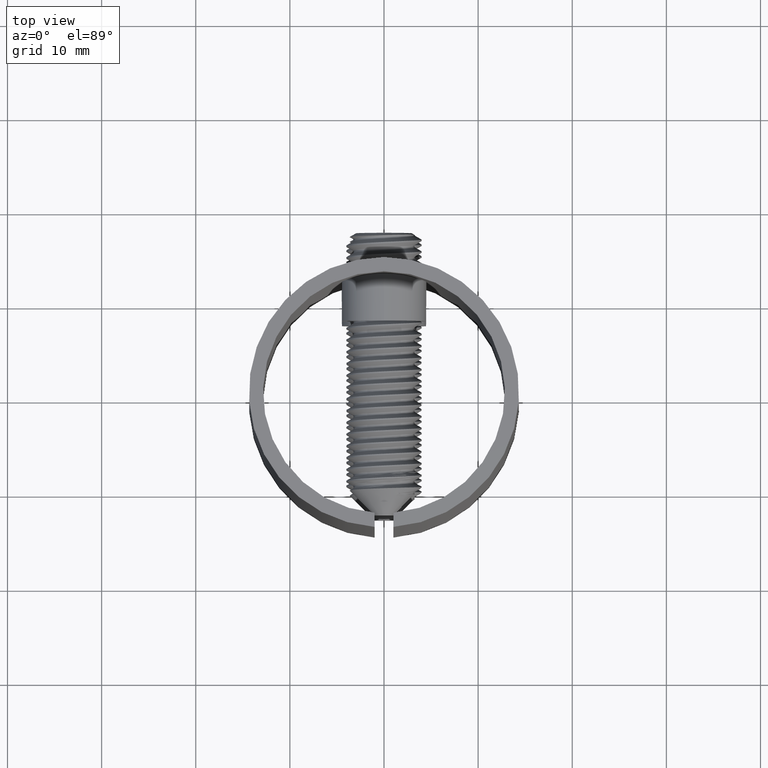
[diagram: clean part render]
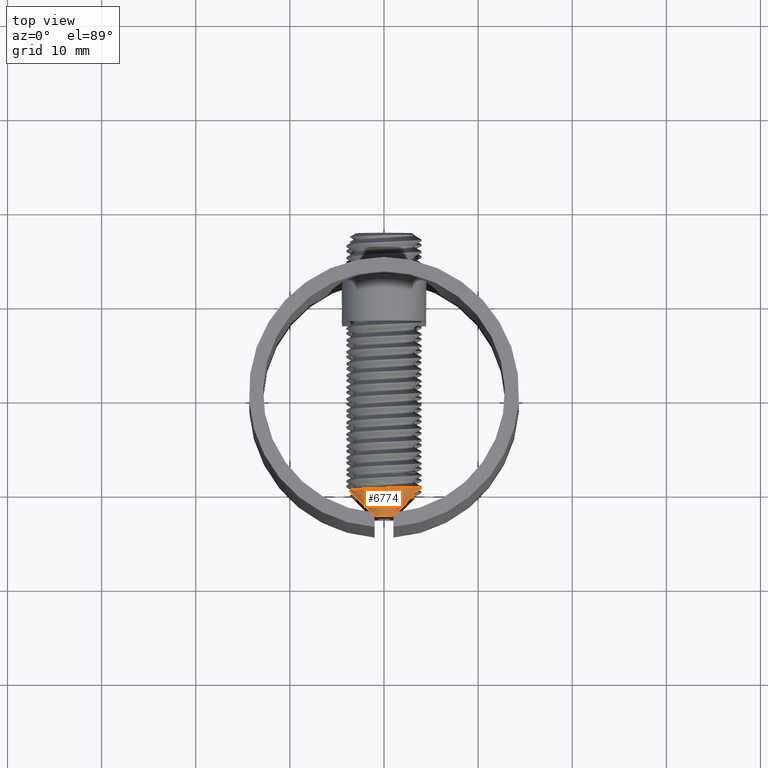
[diagram: same view with one face highlighted and labeled with its STEP entity id]
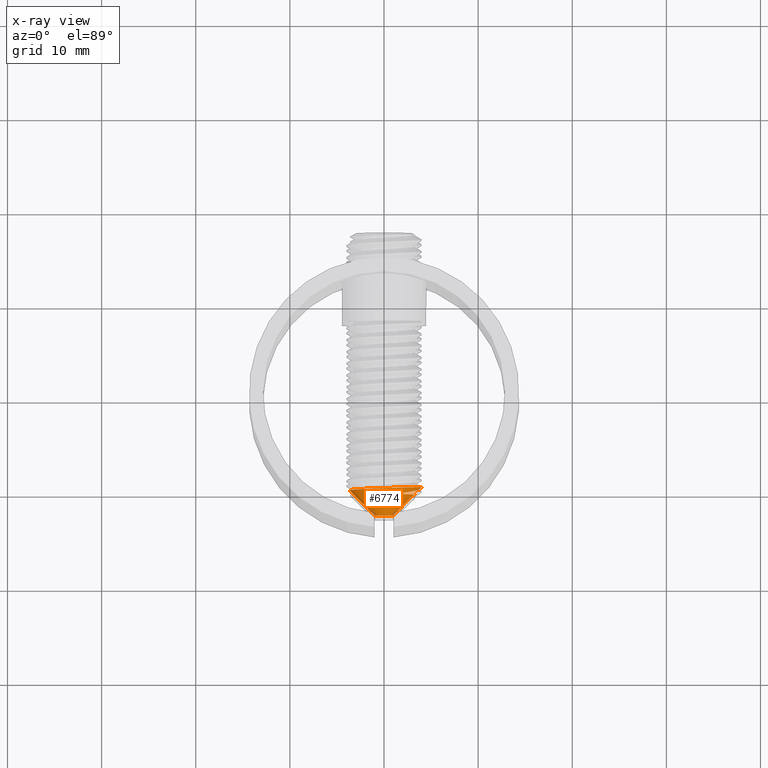
[diagram: x-ray of the same camera — body ghosted, the highlighted face saturated]
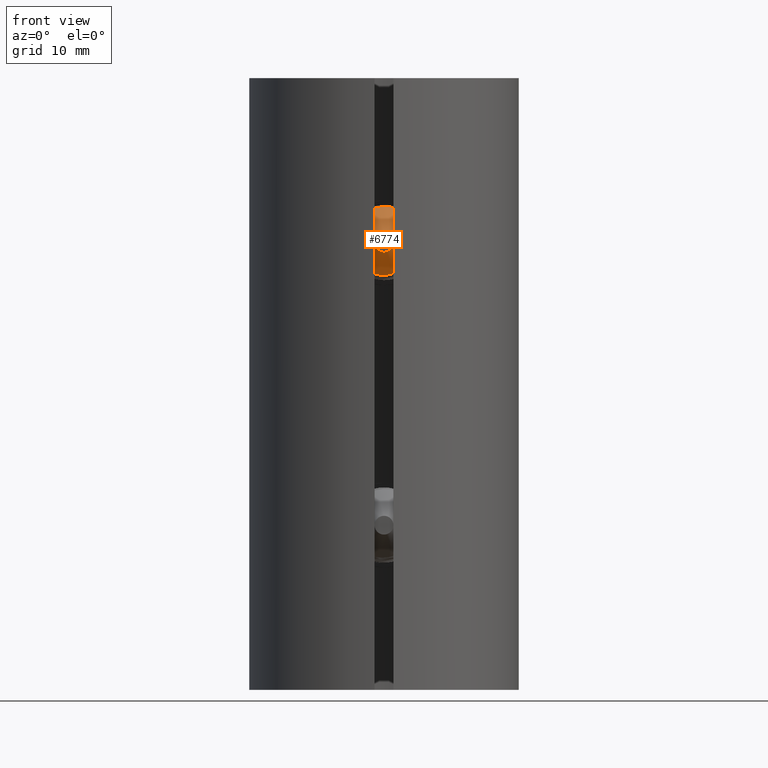
[diagram: same view with one face highlighted and labeled with its STEP entity id]
A machine part, top view. The second image highlights one B-rep face of the part: STEP entity #6774.
The next image is the same camera in x-ray: the body ghosted, the highlighted face saturated — about 1% of this face is hidden behind the body in this view.
A second angle (front view) of the same face is appended — the face is thin or edge-on in the first view.
In plain terms, the highlighted conical surface has half-angle 45 deg.
Its self-contained STEP definition (entity closure, byte-faithful):
#78 = ORIENTED_EDGE ( 'NONE', *, *, #5013, .F. ) ;
#232 = CARTESIAN_POINT ( 'NONE',  ( 2.732472793453551319, 0.7003675740083433743, 3.672872782290969251 ) ) ;
#280 = CARTESIAN_POINT ( 'NONE',  ( 2.441853871619225735, 2.481997571003145886, 2.394608430989022985 ) ) ;
#464 = EDGE_CURVE ( 'NONE', #10109, #2114, #3845, .T. ) ;
#494 = CARTESIAN_POINT ( 'NONE',  ( 2.252383893395727199, 0.5872434834773666568, 3.206907523659066062 ) ) ;
#580 = EDGE_LOOP ( 'NONE', ( #6157, #9927, #78, #1748 ) ) ;
#709 = CARTESIAN_POINT ( 'NONE',  ( 2.807608502105919612, 3.593890995401247235, -1.274268750687270080 ) ) ;
#726 = CARTESIAN_POINT ( 'NONE',  ( 2.300368667587964655, 2.934344625862938649, 1.510700411729752668 ) ) ;
#893 = CARTESIAN_POINT ( 'NONE',  ( 2.373518243573437214, -2.720691221118319181, 2.005157749666361955 ) ) ;
#988 = CARTESIAN_POINT ( 'NONE',  ( 2.351122578835256771, -2.292252405708974816, 2.453166170975595417 ) ) ;
#1217 = CARTESIAN_POINT ( 'NONE',  ( 2.352047583617038029, 2.820849184947258337, 1.824336761129479401 ) ) ;
#1267 = CARTESIAN_POINT ( 'NONE',  ( 2.813463944132663208, 0.04595530224938799979, 3.819540071872713494 ) ) ;
#1307 = CARTESIAN_POINT ( 'NONE',  ( 2.382742596907032162, 2.720806682233161133, 2.021945073807317250 ) ) ;
#1520 = DIRECTION ( 'NONE',  ( -1.000000000000000000, -0.000000000000000000, -0.000000000000000000 ) ) ;
#1587 = VERTEX_POINT ( 'NONE', #8519 ) ;
#1748 = ORIENTED_EDGE ( 'NONE', *, *, #13224, .T. ) ;
#1792 = CARTESIAN_POINT ( 'NONE',  ( 2.973412303395622569, 2.225243543097147114, 3.317669968308135431 ) ) ;
#1834 = CARTESIAN_POINT ( 'NONE',  ( 2.765821764564688312, 2.964155990785655614, -2.331761209459589423 ) ) ;
#1850 = CARTESIAN_POINT ( 'NONE',  ( 2.243313314210731768, 2.761494989473196604, 1.704673841591194172 ) ) ;
#1882 = CARTESIAN_POINT ( 'NONE',  ( 2.835150006989613836, 3.810624390151623686, -0.4790922828771628228 ) ) ;
#1901 = CARTESIAN_POINT ( 'NONE',  ( 2.278585627262468272, 2.929309596327290155, 1.472504726664996211 ) ) ;
#1930 = CARTESIAN_POINT ( 'NONE',  ( 2.494752859786858679, -3.319045695358009862, -1.113168939808582891 ) ) ;
#1978 = CARTESIAN_POINT ( 'NONE',  ( 2.604487327653862039, -1.344878589884743958, -3.369151908998183398 ) ) ;
#2029 = CARTESIAN_POINT ( 'NONE',  ( 2.328047825918495128, -1.790295253892882021, 2.813165329787050695 ) ) ;
#2114 = VERTEX_POINT ( 'NONE', #12429 ) ;
#2309 = CARTESIAN_POINT ( 'NONE',  ( 2.787469492378666036, 0.2677139947784154539, 3.784496060566593822 ) ) ;
#2637 = CARTESIAN_POINT ( 'NONE',  ( 0.000000000000000000, 0.000000000000000000, -0.9999999999999892308 ) ) ;
#2877 = CARTESIAN_POINT ( 'NONE',  ( 2.732254166239438842, 2.201352441039378327, -3.021010365672334608 ) ) ;
#2893 = CARTESIAN_POINT ( 'NONE',  ( 2.283350686042516564, 2.934536996157730560, 1.472713655674893429 ) ) ;
#2919 = CARTESIAN_POINT ( 'NONE',  ( 2.471987009344659647, -3.441354372843653309, -0.5044983585087310374 ) ) ;
#2937 = CARTESIAN_POINT ( 'NONE',  ( 2.316050314459821902, 2.910560383330252243, 1.589205720366669849 ) ) ;
#2982 = CARTESIAN_POINT ( 'NONE',  ( 2.293936565943644812, 2.937255511874842462, 1.490834783688373966 ) ) ;
#2991 = DIRECTION ( 'NONE',  ( 0.000000000000000000, 0.000000000000000000, -1.000000000000000000 ) ) ;
#3009 = CARTESIAN_POINT ( 'NONE',  ( 2.450299880586601642, -3.454627087781998451, 0.1099855849211205522 ) ) ;
#3038 = CARTESIAN_POINT ( 'NONE',  ( 3.000000000000000000, 1.501582772367773488, 3.707458587459651067 ) ) ;
#3059 = CARTESIAN_POINT ( 'NONE',  ( 2.894786138555321298, 3.659735781456697534, 1.348233182847106360 ) ) ;
#3088 = EDGE_CURVE ( 'NONE', #5794, #5794, #5980, .T. ) ;
#3500 = CARTESIAN_POINT ( 'NONE',  ( 2.470238826242047381, 2.341192487048850523, 2.570997627905420302 ) ) ;
#3588 = DIRECTION ( 'NONE',  ( 0.000000000000000000, 0.000000000000000000, -1.000000000000000000 ) ) ;
#3662 = DIRECTION ( 'NONE',  ( 0.000000000000000000, 0.000000000000000000, -1.000000000000000000 ) ) ;
#3713 = CARTESIAN_POINT ( 'NONE',  ( 2.286948239912512726, -0.7532741150883174308, 3.230503852956658317 ) ) ;
#3845 = B_SPLINE_CURVE_WITH_KNOTS ( 'NONE', 3,
 ( #11013, #1217, #1307, #280, #3500, #4448, #8961, #5544, #5587, #4537, #232, #2309, #1267, #8779, #7772, #11146 ),
 .UNSPECIFIED., .F., .F.,
 ( 4, 2, 2, 2, 2, 2, 2, 4 ),
 ( 2.984616190794139929E-16, 0.0006693980249465494685, 0.001338796049892800348, 0.002008194074839051227, 0.002677592099785302323, 0.003346990124731553419, 0.004016388149677804081, 0.005355184199570306273 ),
 .UNSPECIFIED. ) ;
#3889 = CARTESIAN_POINT ( 'NONE',  ( 2.291615754069609157, 2.938088756696093817, 1.484045186608175193 ) ) ;
#3962 = CARTESIAN_POINT ( 'NONE',  ( 2.954078118527459385, 2.689015394139418813, 2.906301662849583245 ) ) ;
#4009 = CARTESIAN_POINT ( 'NONE',  ( 2.427927060687872896, -3.357127633566891145, 0.7231563494454724683 ) ) ;
#4026 = CARTESIAN_POINT ( 'NONE',  ( 2.229843917470292869, 2.006113318721689964, 2.541342605364815821 ) ) ;
#4057 = CARTESIAN_POINT ( 'NONE',  ( 2.848255154616866403, 3.853053076907344998, -0.07114635471035973824 ) ) ;
#4083 = CARTESIAN_POINT ( 'NONE',  ( 2.999999999999999112, 0.000000000000000000, 0.000000000000000000 ) ) ;
#4448 = CARTESIAN_POINT ( 'NONE',  ( 2.528716738964686073, 2.033381102448772015, 2.892379067308653795 ) ) ;
#4537 = CARTESIAN_POINT ( 'NONE',  ( 2.704397777732019836, 0.9087128733884110021, 3.597911262749567296 ) ) ;
#4605 = B_SPLINE_CURVE_WITH_KNOTS ( 'NONE', 3,
 ( #8499, #6187, #1792, #3962, #6101, #10580, #8397, #10481, #8444, #3059, #7207, #13823, #12812, #9583, #4057, #1882, #13729, #13874, #709, #8302, #9484, #12761, #1834, #9391, #5155, #2877, #11569, #5109, #7299, #6281, #11665, #5063, #12668, #6141, #1978, #6229, #13775, #11715, #7249, #8343, #13920, #1930, #9535, #2919, #10532, #3009, #7396, #4009, #10626, #5201, #11617, #12710, #893, #5399, #988, #5308, #2029, #14024 ),
 .UNSPECIFIED., .F., .F.,
 ( 4, 2, 2, 2, 2, 2, 2, 2, 2, 2, 2, 2, 2, 2, 2, 2, 2, 2, 2, 2, 2, 2, 2, 2, 2, 2, 2, 2, 4 ),
 ( 3.909146525865938545E-18, 0.001228390359073292361, 0.001842585538609936699, 0.002456780718146580819, 0.003070975897683226024, 0.003685171077219871229, 0.004299366256756517735, 0.004913561436293162506, 0.005527756615829808144, 0.006141951795366452915, 0.006756146974903098554, 0.007370342154439743325, 0.007984537333976388096, 0.008598732513513033734, 0.009212927693049677638, 0.009827122872586321542, 0.01105551323165961108, 0.01228390359073290063, 0.01351229394980618843, 0.01412648912934283407, 0.01474068430887947798, 0.01535487948841612535, 0.01596907466795277272, 0.01658326984748941663, 0.01719746502702606400, 0.01781166020656271137, 0.01842585538609935875, 0.01904005056563600265, 0.01965424574517265002 ),
 .UNSPECIFIED. ) ;
#4983 = VERTEX_POINT ( 'NONE', #3038 ) ;
#4996 = CARTESIAN_POINT ( 'NONE',  ( 2.262586745972936075, 2.888033668966297984, 1.517867888519707886 ) ) ;
#5013 = EDGE_CURVE ( 'NONE', #4983, #2114, #8360, .T. ) ;
#5037 = CARTESIAN_POINT ( 'NONE',  ( 2.285977635978072353, 2.936171371603525149, 1.475314219800798243 ) ) ;
#5063 = CARTESIAN_POINT ( 'NONE',  ( 2.661163790361418258, 0.2756415563376637401, -3.673652769440772126 ) ) ;
#5080 = CARTESIAN_POINT ( 'NONE',  ( 2.239852663903267427, 2.697516295124677832, 1.798015859755359047 ) ) ;
#5109 = CARTESIAN_POINT ( 'NONE',  ( 2.711170062180985774, 1.666386630145762382, -3.322317244521830748 ) ) ;
#5155 = CARTESIAN_POINT ( 'NONE',  ( 2.745958145684994633, 2.530193186409799733, -2.770028863825657606 ) ) ;
#5173 = CARTESIAN_POINT ( 'NONE',  ( 2.276812761440035526, 2.926444433889895613, 1.474256890000764875 ) ) ;
#5201 = CARTESIAN_POINT ( 'NONE',  ( 2.404754870241925246, -3.152361048939851695, 1.302685587322410576 ) ) ;
#5308 = CARTESIAN_POINT ( 'NONE',  ( 2.335876702580696129, -1.964873074572548006, 2.703658630663026141 ) ) ;
#5399 = CARTESIAN_POINT ( 'NONE',  ( 2.358442505545565115, -2.445741148025901257, 2.310774606469154779 ) ) ;
#5544 = CARTESIAN_POINT ( 'NONE',  ( 2.617241493106041705, 1.504358124780492911, 3.296966714367457030 ) ) ;
#5587 = CARTESIAN_POINT ( 'NONE',  ( 2.646933033974607774, 1.309821772950754859, 3.410666961550988585 ) ) ;
#5794 = VERTEX_POINT ( 'NONE', #2637 ) ;
#5889 = CARTESIAN_POINT ( 'NONE',  ( 2.268317814047227543, -0.08442140994709466939, 3.274852887581459093 ) ) ;
#5980 = CIRCLE ( 'NONE', #10113, 0.9999999999999892308 ) ;
#6101 = CARTESIAN_POINT ( 'NONE',  ( 2.947891088157791994, 2.833180734127882960, 2.756955788102319449 ) ) ;
#6141 = CARTESIAN_POINT ( 'NONE',  ( 2.619534340839618114, -0.9500837888476492132, -3.516490073330340582 ) ) ;
#6157 = ORIENTED_EDGE ( 'NONE', *, *, #10658, .T. ) ;
#6187 = CARTESIAN_POINT ( 'NONE',  ( 2.986574883388736890, 1.881122087541610588, 3.539254371866875193 ) ) ;
#6229 = CARTESIAN_POINT ( 'NONE',  ( 2.575119185646212561, -2.052210469748972255, -2.955920075314544260 ) ) ;
#6281 = CARTESIAN_POINT ( 'NONE',  ( 2.689477561532330530, 1.082660555015318771, -3.533124654276723842 ) ) ;
#6774 = ADVANCED_FACE ( 'NONE', ( #14008, #6824 ), #13653, .T. ) ;
#6824 = FACE_OUTER_BOUND ( 'NONE', #580, .T. ) ;
#7207 = CARTESIAN_POINT ( 'NONE',  ( 2.887998161509027994, 3.718973605081613343, 1.152351414925383732 ) ) ;
#7249 = CARTESIAN_POINT ( 'NONE',  ( 2.532416643362710218, -2.888062166651379048, -2.044492664186564390 ) ) ;
#7274 = DIRECTION ( 'NONE',  ( 1.000000000000000000, -0.000000000000000000, -0.000000000000000000 ) ) ;
#7295 = AXIS2_PLACEMENT_3D ( 'NONE', #11277, #12378, #3588 ) ;
#7299 = CARTESIAN_POINT ( 'NONE',  ( 2.703966036138916174, 1.476224617032029007, -3.403381303928906920 ) ) ;
#7317 = CARTESIAN_POINT ( 'NONE',  ( 2.239306035328340716, 1.234346522707120641, 3.003411131912077092 ) ) ;
#7396 = CARTESIAN_POINT ( 'NONE',  ( 2.443026268253588373, -3.434557931655008112, 0.3175197921318405059 ) ) ;
#7659 = AXIS2_PLACEMENT_3D ( 'NONE', #4083, #7274, #2991 ) ;
#7772 = CARTESIAN_POINT ( 'NONE',  ( 2.946213245500140854, -1.068538552748550918, 3.824817881323633983 ) ) ;
#8302 = CARTESIAN_POINT ( 'NONE',  ( 2.793662103321998824, 3.423623976666126723, -1.646997829711164485 ) ) ;
#8343 = CARTESIAN_POINT ( 'NONE',  ( 2.517414967297487483, -3.094444836248990249, -1.685083142646143006 ) ) ;
#8360 = CIRCLE ( 'NONE', #7659, 4.000000000000000000 ) ;
#8361 = CARTESIAN_POINT ( 'NONE',  ( 2.260751370765563983, 2.879901305709872350, 1.529334191123445263 ) ) ;
#8397 = CARTESIAN_POINT ( 'NONE',  ( 2.928642754835230289, 3.210783349259253239, 2.273197378472027186 ) ) ;
#8444 = CARTESIAN_POINT ( 'NONE',  ( 2.908388191615620677, 3.510446180141300054, 1.730406169953634610 ) ) ;
#8499 = CARTESIAN_POINT ( 'NONE',  ( 3.000000000000000000, 1.501582772367773488, 3.707458587459651067 ) ) ;
#8519 = CARTESIAN_POINT ( 'NONE',  ( 2.320000000000010498, -1.604542476555381958, 2.906517407642621897 ) ) ;
#8779 = CARTESIAN_POINT ( 'NONE',  ( 2.891617496181264180, -0.6175430645668956720, 3.867465745029302404 ) ) ;
#8961 = CARTESIAN_POINT ( 'NONE',  ( 2.558126528311468917, 1.866020250043032513, 3.037577930143546379 ) ) ;
#8992 = CARTESIAN_POINT ( 'NONE',  ( 0.000000000000000000, 0.000000000000000000, 0.000000000000000000 ) ) ;
#9364 = CARTESIAN_POINT ( 'NONE',  ( 2.319999999999996287, 2.900717108233616504, 1.615004723832368816 ) ) ;
#9391 = CARTESIAN_POINT ( 'NONE',  ( 2.752476003891789258, 2.683862829555450524, -2.630565335644818870 ) ) ;
#9411 = CARTESIAN_POINT ( 'NONE',  ( 2.255885704810409731, 2.855802527923969159, 1.563957810034635187 ) ) ;
#9456 = CARTESIAN_POINT ( 'NONE',  ( 2.267338825127187540, 2.904942655846128208, 1.495660486043910442 ) ) ;
#9484 = CARTESIAN_POINT ( 'NONE',  ( 2.786583463145846817, 3.322146032248491032, -1.828698461544557174 ) ) ;
#9535 = CARTESIAN_POINT ( 'NONE',  ( 2.487097512379117248, -3.371958320716871516, -0.9124093732305388338 ) ) ;
#9583 = CARTESIAN_POINT ( 'NONE',  ( 2.854503841933479613, 3.857665994280268684, 0.1334652886670943117 ) ) ;
#9596 = ORIENTED_EDGE ( 'NONE', *, *, #3088, .F. ) ;
#9927 = ORIENTED_EDGE ( 'NONE', *, *, #464, .T. ) ;
#10109 = VERTEX_POINT ( 'NONE', #12863 ) ;
#10113 = AXIS2_PLACEMENT_3D ( 'NONE', #8992, #1520, #3662 ) ;
#10481 = CARTESIAN_POINT ( 'NONE',  ( 2.915262972000284503, 3.419334620878498043, 1.918269280531651022 ) ) ;
#10498 = CARTESIAN_POINT ( 'NONE',  ( 2.303382099482735423, 2.930932649811986312, 1.523858551913744863 ) ) ;
#10532 = CARTESIAN_POINT ( 'NONE',  ( 2.464627145120311891, -3.457688377134422897, -0.3000136994966939863 ) ) ;
#10549 = CARTESIAN_POINT ( 'NONE',  ( 2.269646536690770766, 2.913466174221802873, 1.484061921496705461 ) ) ;
#10580 = CARTESIAN_POINT ( 'NONE',  ( 2.935165588405090009, 3.093468580587271255, 2.440871687515653310 ) ) ;
#10626 = CARTESIAN_POINT ( 'NONE',  ( 2.420274033747094489, -3.300548962022207267, 0.9201441251637367813 ) ) ;
#10658 = EDGE_CURVE ( 'NONE', #1587, #10109, #13994, .T. ) ;
#11013 = CARTESIAN_POINT ( 'NONE',  ( 2.319999999999996287, 2.900717108233616504, 1.615004723832368816 ) ) ;
#11146 = CARTESIAN_POINT ( 'NONE',  ( 3.000000000000001332, -1.501582772367774377, 3.707458587459651067 ) ) ;
#11270 = CARTESIAN_POINT ( 'NONE',  ( 2.262896669172818953, 0.1390844199186760111, 3.267760698399252206 ) ) ;
#11277 = CARTESIAN_POINT ( 'NONE',  ( 2.999999999999999112, 0.000000000000000000, 0.000000000000000000 ) ) ;
#11456 = CARTESIAN_POINT ( 'NONE',  ( 2.320000000000010498, -1.604542476555381958, 2.906517407642621897 ) ) ;
#11502 = CARTESIAN_POINT ( 'NONE',  ( 2.230184242915703496, 2.340541244198071524, 2.237627779941019579 ) ) ;
#11541 = CARTESIAN_POINT ( 'NONE',  ( 2.231206372355885481, 1.823196329156458129, 2.677163534389102928 ) ) ;
#11569 = CARTESIAN_POINT ( 'NONE',  ( 2.725297126028575434, 2.028487954423087380, -3.131282219779057296 ) ) ;
#11617 = CARTESIAN_POINT ( 'NONE',  ( 2.396805873200689607, -3.059488342350481282, 1.490042120008174376 ) ) ;
#11665 = CARTESIAN_POINT ( 'NONE',  ( 2.682328683697972505, 0.8829945914601378121, -3.580748629235734892 ) ) ;
#11715 = CARTESIAN_POINT ( 'NONE',  ( 2.539740897037232159, -2.769451810706867523, -2.213997157238543512 ) ) ;
#12149 = EDGE_LOOP ( 'NONE', ( #9596 ) ) ;
#12378 = DIRECTION ( 'NONE',  ( 1.000000000000000000, -0.000000000000000000, -0.000000000000000000 ) ) ;
#12429 = CARTESIAN_POINT ( 'NONE',  ( 3.000000000000001332, -1.501582772367774377, 3.707458587459651067 ) ) ;
#12547 = CARTESIAN_POINT ( 'NONE',  ( 2.302471673158227983, -1.199969188574146584, 3.109840112257061140 ) ) ;
#12642 = CARTESIAN_POINT ( 'NONE',  ( 2.311752703991921454, 2.919748152838900879, 1.563165970572113261 ) ) ;
#12668 = CARTESIAN_POINT ( 'NONE',  ( 2.647830106310017584, -0.1455745320432689505, -3.667806611214225576 ) ) ;
#12684 = CARTESIAN_POINT ( 'NONE',  ( 2.253524937437465958, 2.840117625990229211, 1.587434810880488767 ) ) ;
#12710 = CARTESIAN_POINT ( 'NONE',  ( 2.381192549061060149, -2.843486397860927717, 1.841046565183013906 ) ) ;
#12761 = CARTESIAN_POINT ( 'NONE',  ( 2.772643445171335319, 3.091931226366730012, -2.171492080409870518 ) ) ;
#12812 = CARTESIAN_POINT ( 'NONE',  ( 2.867640868751175187, 3.834714187194394608, 0.5438869656369628158 ) ) ;
#12863 = CARTESIAN_POINT ( 'NONE',  ( 2.319999999999996287, 2.900717108233616504, 1.615004723832368816 ) ) ;
#13224 = EDGE_CURVE ( 'NONE', #4983, #1587, #4605, .T. ) ;
#13653 = CONICAL_SURFACE ( 'NONE', #7295, 4.000000000000000000, 0.7853981633974501664 ) ;
#13654 = CARTESIAN_POINT ( 'NONE',  ( 2.231411634141692080, 2.492590565123619761, 2.068877247759869586 ) ) ;
#13703 = CARTESIAN_POINT ( 'NONE',  ( 2.235938744856569294, 1.437224766230057016, 2.907961374495528162 ) ) ;
#13729 = CARTESIAN_POINT ( 'NONE',  ( 2.828306454330297370, 3.772272778077577104, -0.6843103772652555650 ) ) ;
#13775 = CARTESIAN_POINT ( 'NONE',  ( 2.560866131872440388, -2.374760133133188678, -2.684735819948998792 ) ) ;
#13791 = CARTESIAN_POINT ( 'NONE',  ( 2.247542454243564247, 0.8083119161888162596, 3.153434637527691820 ) ) ;
#13823 = CARTESIAN_POINT ( 'NONE',  ( 2.874449522833964821, 3.806516326464999267, 0.7509602627439182498 ) ) ;
#13874 = CARTESIAN_POINT ( 'NONE',  ( 2.814536838646697792, 3.663721324243792044, -1.081771532286313509 ) ) ;
#13920 = CARTESIAN_POINT ( 'NONE',  ( 2.509882925550557697, -3.180409162550746682, -1.498728652984016474 ) ) ;
#13994 = B_SPLINE_CURVE_WITH_KNOTS ( 'NONE', 3,
 ( #11456, #12547, #3713, #5889, #11270, #494, #13791, #7317, #13703, #11541, #4026, #11502, #13654, #5080, #1850, #12684, #9411, #8361, #4996, #9456, #10549, #5173, #1901, #2893, #5037, #3889, #2982, #726, #10498, #12642, #2937, #9364 ),
 .UNSPECIFIED., .F., .F.,
 ( 4, 2, 2, 2, 2, 2, 2, 2, 2, 2, 2, 2, 2, 2, 2, 4 ),
 ( 0.000000000000000000, 0.001357488918690937570, 0.002036233378036406572, 0.002714977837381875141, 0.003393722296727343709, 0.004072466756072813145, 0.004751211215418282147, 0.005090583445091015347, 0.005175426502509199514, 0.005217848031218292465, 0.005260269559927384549, 0.005270874942104657353, 0.005281480324281930157, 0.005302691088636476632, 0.005345112617345570451, 0.005429955674763758955 ),
 .UNSPECIFIED. ) ;
#14008 = FACE_BOUND ( 'NONE', #12149, .T. ) ;
#14024 = CARTESIAN_POINT ( 'NONE',  ( 2.320000000000010498, -1.604542476555381958, 2.906517407642621897 ) ) ;